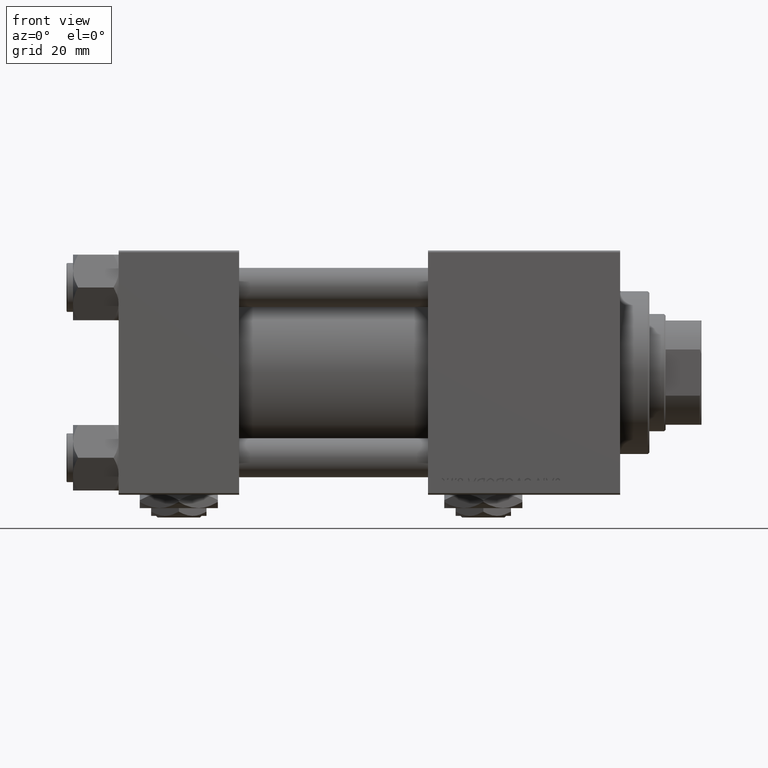
[diagram: clean part render]
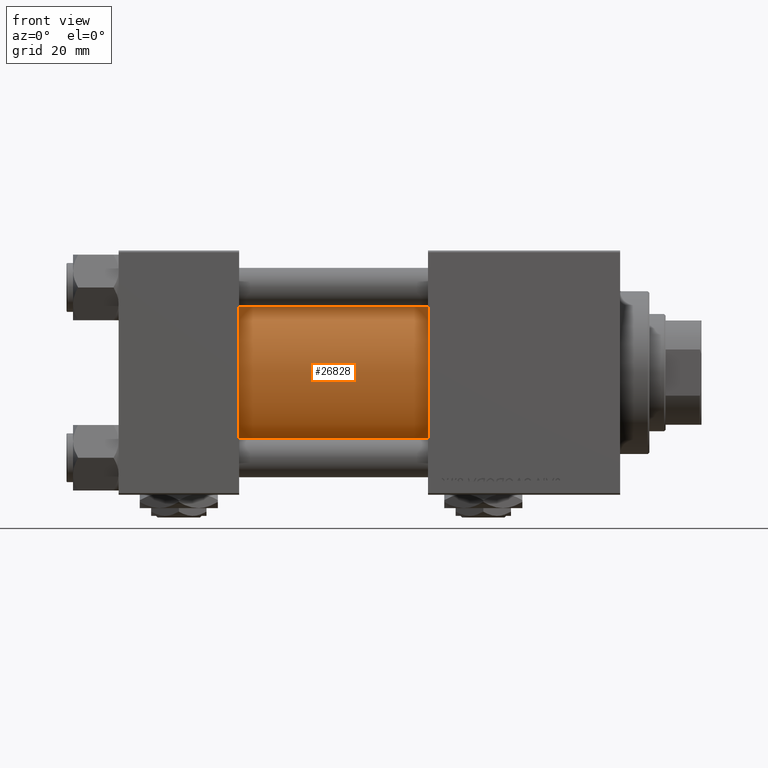
[diagram: same view with one face highlighted and labeled with its STEP entity id]
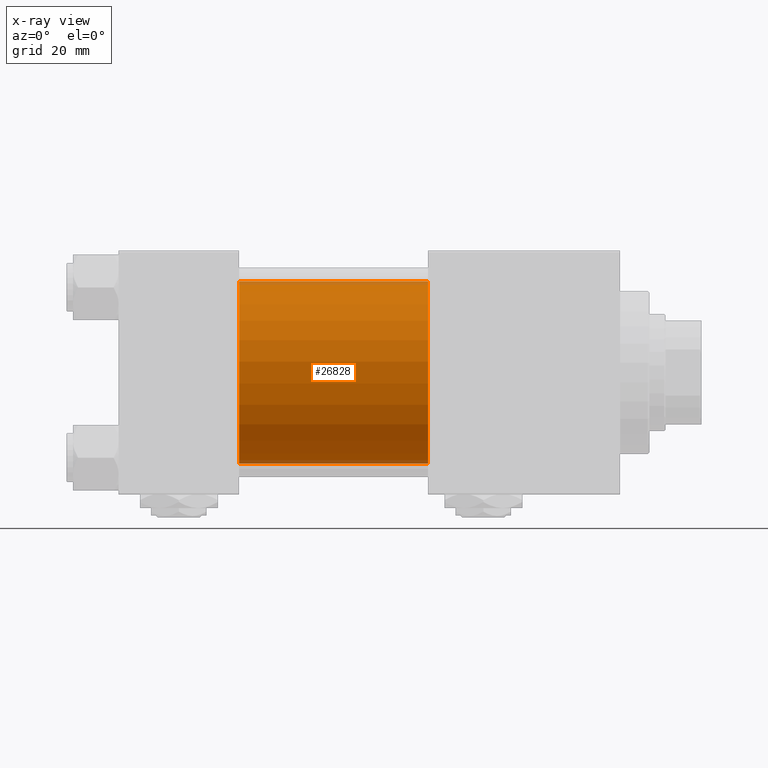
[diagram: x-ray of the same camera — body ghosted, the highlighted face saturated]
A machine part, front view. The second image highlights one B-rep face of the part: STEP entity #26828.
The next image is the same camera in x-ray: the body ghosted, the highlighted face saturated — about 4% of this face is hidden behind the body in this view.
In plain terms, the highlighted cylindrical surface (partial cylindrical patch) has radius 28 mm, axis along (-1, -0, -0).
Its self-contained STEP definition (entity closure, byte-faithful):
#655 = CARTESIAN_POINT ( 'NONE',  ( 95.00000000000000000, 8.269258236473776482E-16, -28.00000000000000000 ) ) ;
#1359 = LINE ( 'NONE', #43985, #17520 ) ;
#2294 = VERTEX_POINT ( 'NONE', #4370 ) ;
#3833 = DIRECTION ( 'NONE',  ( -1.000000000000000000, -0.000000000000000000, -0.000000000000000000 ) ) ;
#4370 = CARTESIAN_POINT ( 'NONE',  ( 37.00000000000000000, -2.602085213965210642E-15, 28.00000000000000000 ) ) ;
#5172 = LINE ( 'NONE', #33462, #23260 ) ;
#5324 = AXIS2_PLACEMENT_3D ( 'NONE', #34977, #34719, #30516 ) ;
#5561 = ORIENTED_EDGE ( 'NONE', *, *, #32986, .F. ) ;
#5655 = FACE_OUTER_BOUND ( 'NONE', #44949, .T. ) ;
#10172 = CIRCLE ( 'NONE', #18629, 28.00000000000000000 ) ;
#10544 = EDGE_CURVE ( 'NONE', #2294, #33850, #10172, .T. ) ;
#11592 = VERTEX_POINT ( 'NONE', #655 ) ;
#12584 = DIRECTION ( 'NONE',  ( -1.000000000000000000, -0.000000000000000000, -0.000000000000000000 ) ) ;
#15001 = CARTESIAN_POINT ( 'NONE',  ( 95.00000000000000000, -2.602085213965210642E-15, 28.00000000000000000 ) ) ;
#17520 = VECTOR ( 'NONE', #3833, 1000.000000000000000 ) ;
#18629 = AXIS2_PLACEMENT_3D ( 'NONE', #48925, #48136, #41258 ) ;
#19164 = CARTESIAN_POINT ( 'NONE',  ( 37.00000000000000000, 8.269258236473776482E-16, -28.00000000000000000 ) ) ;
#21346 = CIRCLE ( 'NONE', #39876, 28.00000000000000000 ) ;
#22524 = EDGE_CURVE ( 'NONE', #31709, #11592, #21346, .T. ) ;
#23260 = VECTOR ( 'NONE', #12584, 1000.000000000000000 ) ;
#26438 = DIRECTION ( 'NONE',  ( 1.000000000000000000, 0.000000000000000000, 0.000000000000000000 ) ) ;
#26828 = ADVANCED_FACE ( 'NONE', ( #5655 ), #50546, .T. ) ;
#30516 = DIRECTION ( 'NONE',  ( 0.000000000000000000, 0.000000000000000000, 1.000000000000000000 ) ) ;
#31076 = ORIENTED_EDGE ( 'NONE', *, *, #40572, .T. ) ;
#31709 = VERTEX_POINT ( 'NONE', #15001 ) ;
#32986 = EDGE_CURVE ( 'NONE', #11592, #33850, #5172, .T. ) ;
#33462 = CARTESIAN_POINT ( 'NONE',  ( 95.00000000000000000, 8.269258236473776482E-16, -28.00000000000000000 ) ) ;
#33850 = VERTEX_POINT ( 'NONE', #19164 ) ;
#34719 = DIRECTION ( 'NONE',  ( -1.000000000000000000, -0.000000000000000000, -0.000000000000000000 ) ) ;
#34977 = CARTESIAN_POINT ( 'NONE',  ( 95.00000000000000000, -2.602085213965210642E-15, 0.000000000000000000 ) ) ;
#39061 = CARTESIAN_POINT ( 'NONE',  ( 95.00000000000000000, -2.602085213965210642E-15, 0.000000000000000000 ) ) ;
#39876 = AXIS2_PLACEMENT_3D ( 'NONE', #39061, #26438, #42500 ) ;
#40479 = ORIENTED_EDGE ( 'NONE', *, *, #22524, .F. ) ;
#40572 = EDGE_CURVE ( 'NONE', #31709, #2294, #1359, .T. ) ;
#41258 = DIRECTION ( 'NONE',  ( 0.000000000000000000, 0.000000000000000000, 1.000000000000000000 ) ) ;
#41577 = ORIENTED_EDGE ( 'NONE', *, *, #10544, .T. ) ;
#42500 = DIRECTION ( 'NONE',  ( 0.000000000000000000, 0.000000000000000000, -1.000000000000000000 ) ) ;
#43985 = CARTESIAN_POINT ( 'NONE',  ( 95.00000000000000000, -2.602085213965210642E-15, 28.00000000000000000 ) ) ;
#44949 = EDGE_LOOP ( 'NONE', ( #5561, #40479, #31076, #41577 ) ) ;
#48136 = DIRECTION ( 'NONE',  ( 1.000000000000000000, -0.000000000000000000, 0.000000000000000000 ) ) ;
#48925 = CARTESIAN_POINT ( 'NONE',  ( 37.00000000000000000, -2.602085213965210642E-15, 0.000000000000000000 ) ) ;
#50546 = CYLINDRICAL_SURFACE ( 'NONE', #5324, 28.00000000000000000 ) ;